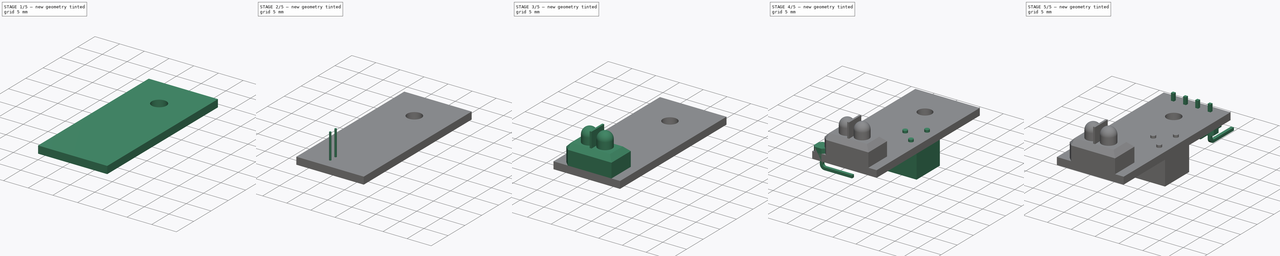
[diagram: build sequence overview — one tinted view per stage of 5, left to right]
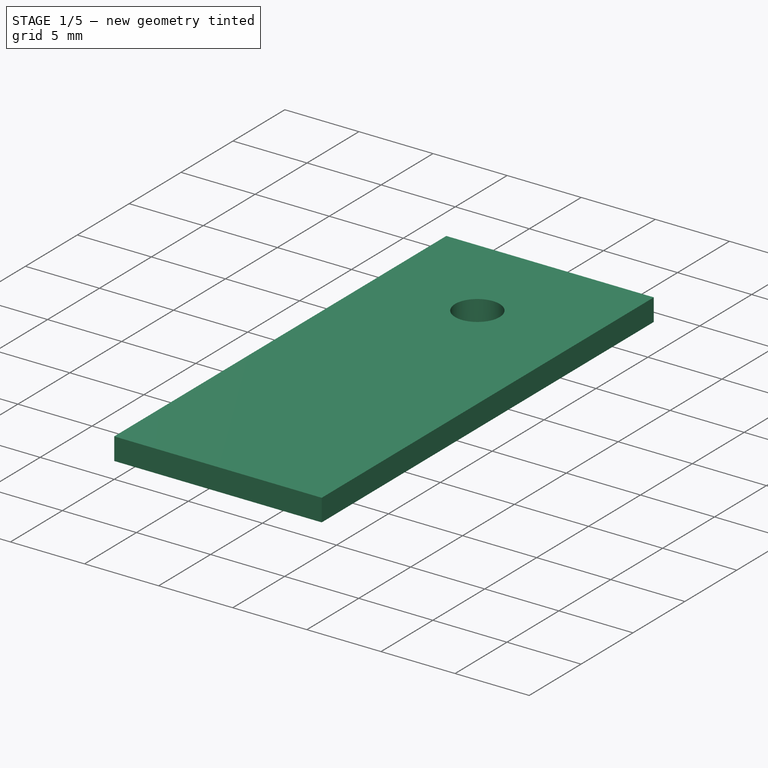
[diagram: stage 1 of 5 — iso view after this stage's code; geometry added in this stage tinted green]
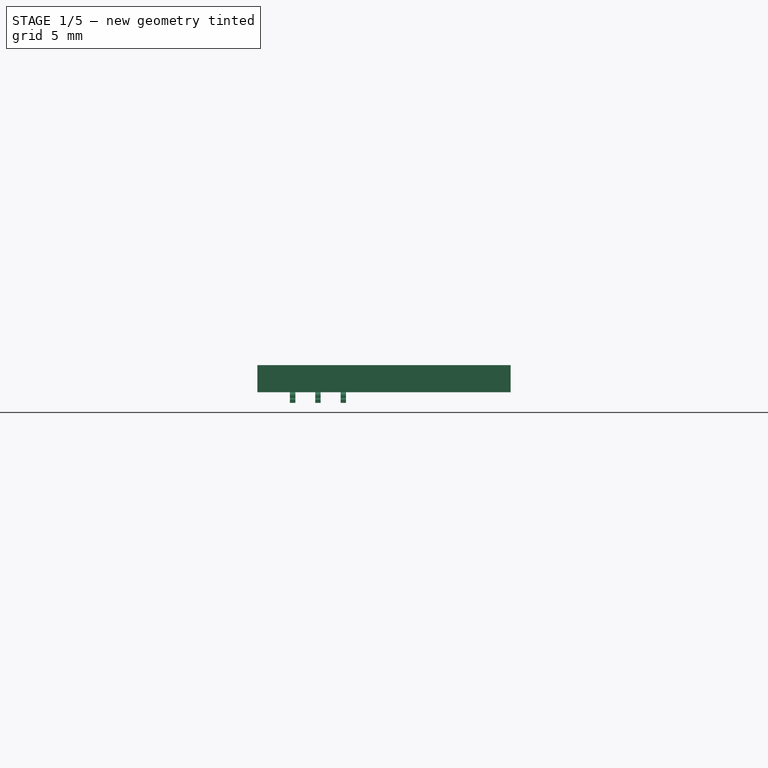
[diagram: stage 1 of 5 — front view after this stage's code; geometry added in this stage tinted green]
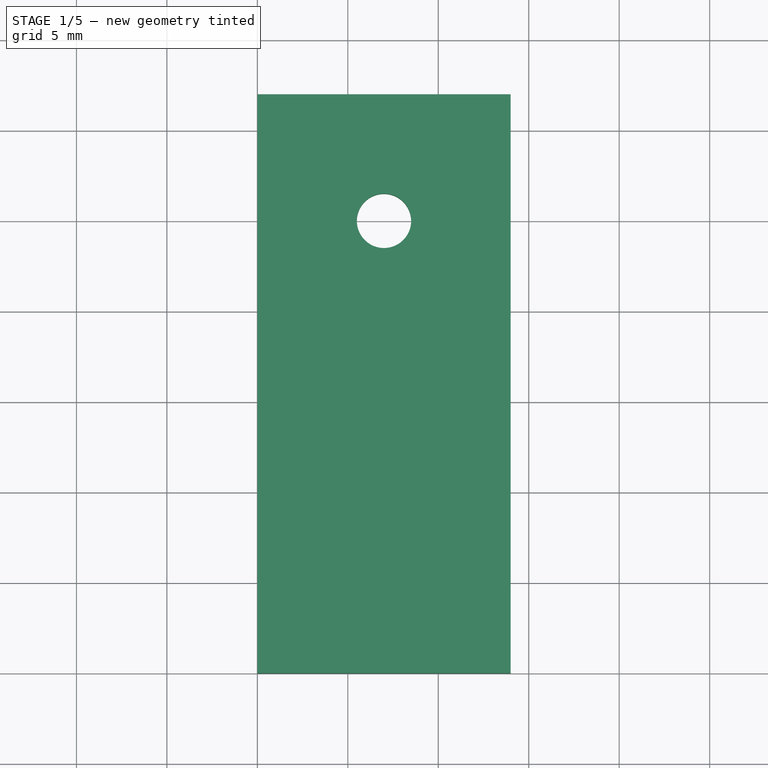
[diagram: stage 1 of 5 — top view after this stage's code; geometry added in this stage tinted green]
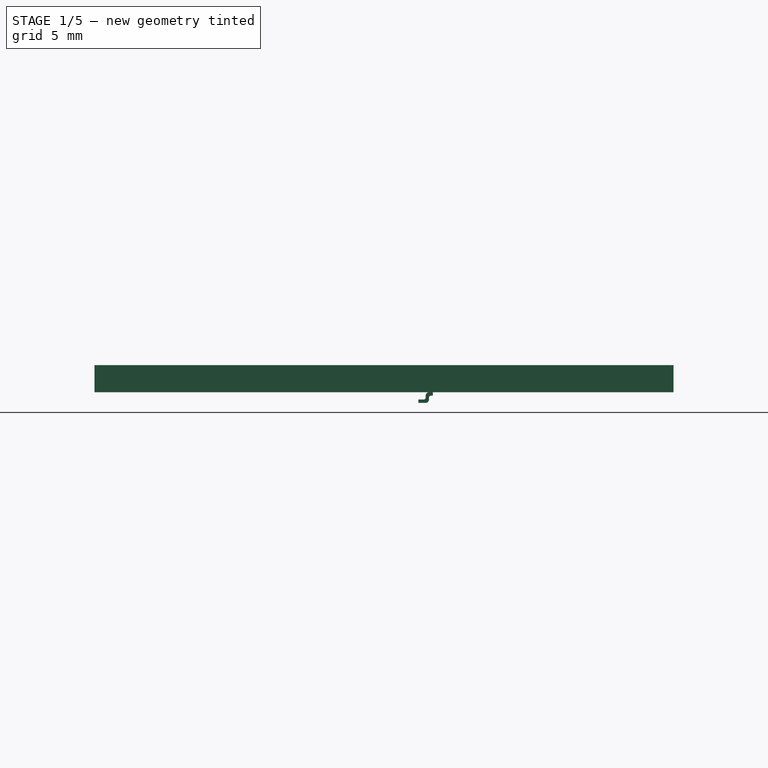
[diagram: stage 1 of 5 — right view after this stage's code; geometry added in this stage tinted green]
FCSTD DOCUMENT  (FreeCAD 0.14R3700 (Git))
Label: tcrt5000
License: CC-BY 3.0
LicenseURL: http://creativecommons.org/licenses/by/3.0/
objects: Part::Fillet×23, Part::Box×13, Part::MultiFuse×13, Part::Cylinder×10, Sketcher::SketchObject×6, PartDesign::Pad×5, PartDesign::Pocket×4, Part::Chamfer×2, Part::Sphere×2, App::DocumentObjectGroup×1
note: 87 computed .brp shape members not serialized (recipe doc carries the construction recipe); baked Part::Feature solids carry a one-line shape summary decoded from their .brp

FEATURE [Part::Box] Box  label="BASE"
  Height = 1.5
  Length = 14
  Width = 32
FEATURE [Part::Box] Box010  label="Cubo009"
  Height = 0.19
  Length = 0.3
  Placement = pos=(6,13,-0.19) rot=(0,0,1;0rad)
  Width = 0.4
FEATURE [Part::Box] Box011  label="Cubo010"
  Height = 0.19
  Length = 0.3
  Placement = pos=(6,13.4,-0.59) rot=(1,0,0;1.5708rad)
  Width = 0.4
FEATURE [Part::Box] Box012  label="Cubo011"
  Height = 0.19
  Length = 0.3
  Placement = pos=(6,13.4,-0.59) rot=(0,0,1;0rad)
  Width = 0.4
FEATURE [Part::MultiFuse] Fusion015
  Placement = pos=(0,0.3,0) rot=(0,0,1;0rad)
  Shapes = -> [Box010,Box011,Box012]
FEATURE [Part::Fillet] Fillet005
  Base = -> Fusion015
  Edges = 1 edges r=0.2: [Edge12]
FEATURE [Part::Fillet] Fillet006
  Base = -> Fillet005
  Edges = 1 edges r=0.1: [Edge25]
FEATURE [Part::Fillet] Fillet018
  Base = -> Fillet006
  Edges = 1 edges r=0.2: [Edge18]
FEATURE [Part::Fillet] Fillet017
  Base = -> Fillet018
  Edges = 1 edges r=0.1: [Edge27]
  Placement = pos=(10.9,32,0) rot=(0,0,1;3.14159rad)
FEATURE [Part::Fillet] Fillet020
  Base = -> Fillet006
  Edges = 1 edges r=0.2: [Edge18]
FEATURE [Part::Fillet] Fillet019
  Base = -> Fillet020
  Edges = 1 edges r=0.1: [Edge27]
  Placement = pos=(9.5,32,0) rot=(0,0,1;3.14159rad)
FEATURE [Part::Fillet] Fillet022
  Base = -> Fillet006
  Edges = 1 edges r=0.2: [Edge18]
FEATURE [Part::Fillet] Fillet021
  Base = -> Fillet022
  Edges = 1 edges r=0.1: [Edge27]
  Placement = pos=(8.1,32,0) rot=(0,0,1;3.14159rad)
FEATURE [Sketcher::SketchObject] Sketch005
  ExternalGeometry = -> [Box]
  Placement = pos=(0,0,0) rot=(1,0,0;3.14159rad)
  Support = -> Box [Face5]
  sketch-geometry (1):
    g0: Circle CenterX=7 CenterY=-25 CenterZ=0 NormalX=0 NormalY=0 NormalZ=1 Radius=1.5
  constraints (3):
    c: Radius(g0) = 1.5
    c: DistanceX(g0,g-3) = -7
    c: DistanceY(g0,g-3) = -7
FEATURE [PartDesign::Pocket] Pocket003  label="placa"
  Length = 5
  Sketch = -> Sketch005
  Type = 0
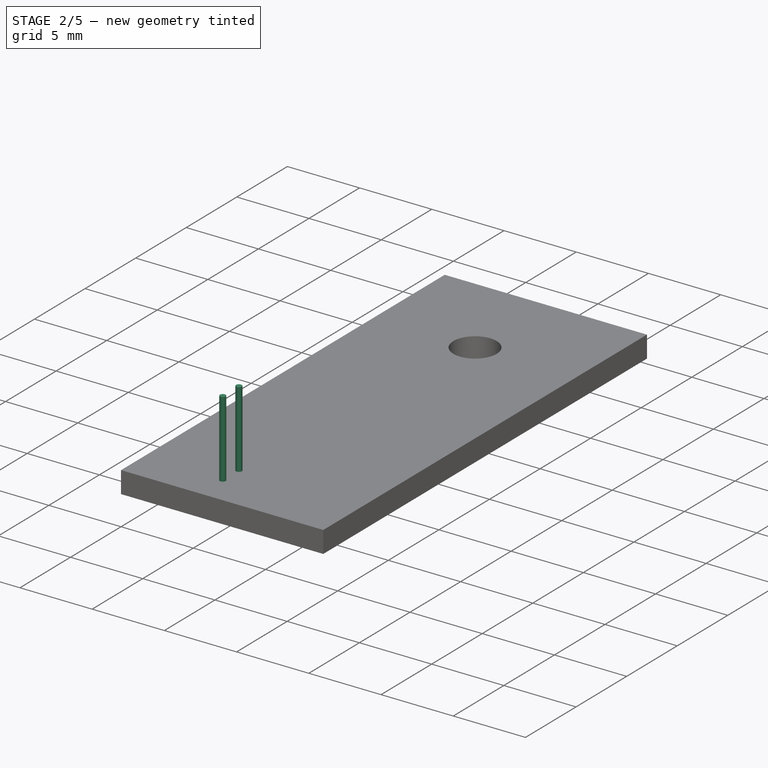
[diagram: stage 2 of 5 — iso view after this stage's code; geometry added in this stage tinted green]
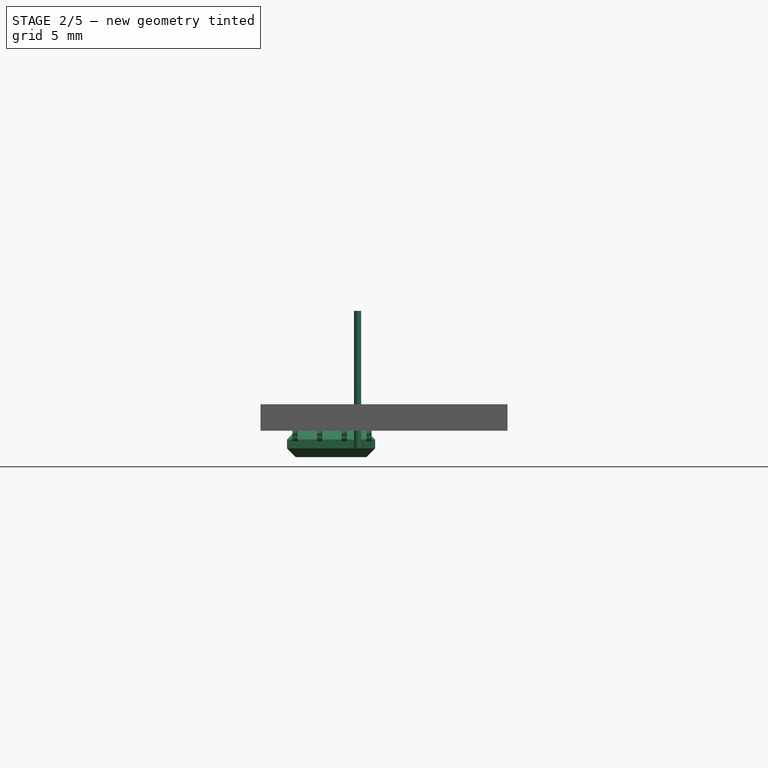
[diagram: stage 2 of 5 — front view after this stage's code; geometry added in this stage tinted green]
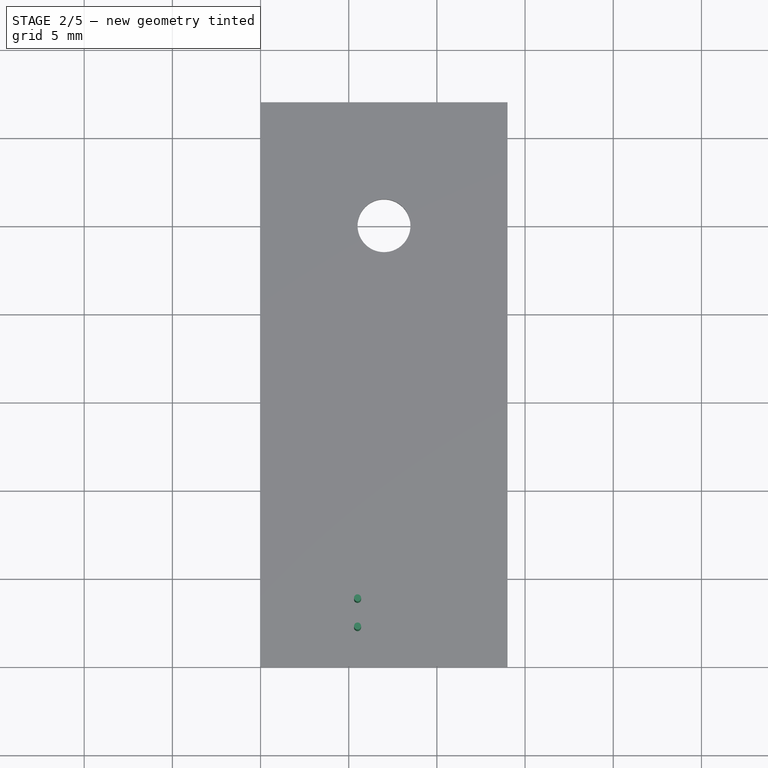
[diagram: stage 2 of 5 — top view after this stage's code; geometry added in this stage tinted green]
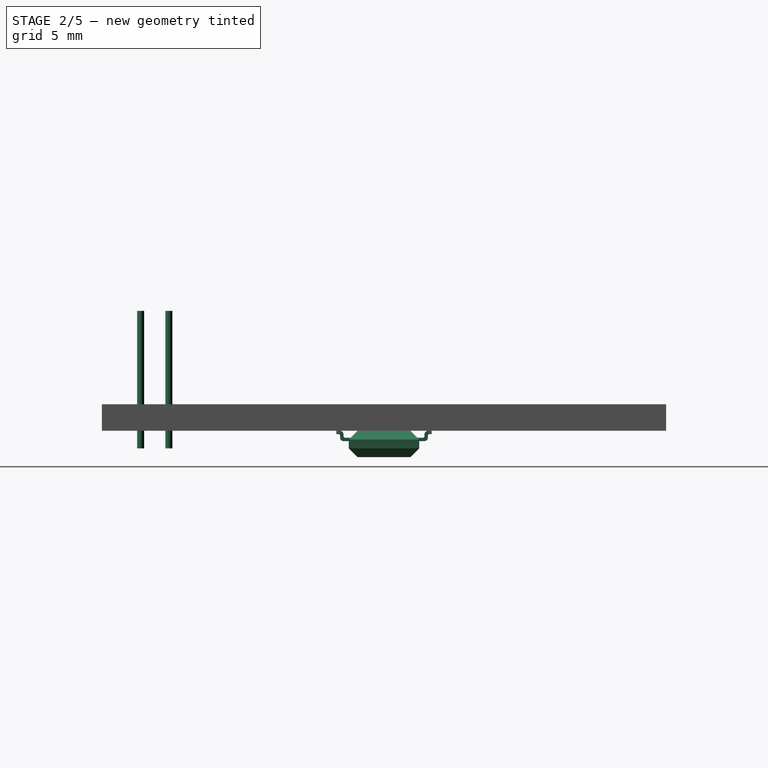
[diagram: stage 2 of 5 — right view after this stage's code; geometry added in this stage tinted green]
FEATURE [Part::Cylinder] Cylinder002  label="Cilindro002"
  Angle = 360
  Height = 7.8
  Placement = pos=(5.5,2.2,-1) rot=(0,0,1;0rad)
  Radius = 0.2
FEATURE [Part::Cylinder] Cylinder003  label="Cilindro003"
  Angle = 360
  Height = 7.8
  Placement = pos=(5.5,3.8,-1) rot=(0,0,1;0rad)
  Radius = 0.2
FEATURE [Part::Box] Box009  label="Cubo008"
  Height = 1.5
  Length = 5
  Width = 4
FEATURE [Part::Chamfer] Chamfer001
  Base = -> Box009
  Edges = 8 edges r=0.5: [Edge2,Edge4,Edge6,Edge8,Edge9,Edge10,Edge11,Edge12]
  Placement = pos=(1.5,14,-1.5) rot=(0,0,1;0rad)
FEATURE [Part::Fillet] Fillet007
  Base = -> Fillet006
  Edges = 1 edges r=0.2: [Edge18]
FEATURE [Part::Fillet] Fillet008
  Base = -> Fillet007
  Edges = 1 edges r=0.1: [Edge27]
FEATURE [Part::Fillet] Fillet010
  Base = -> Fillet006
  Edges = 1 edges r=0.2: [Edge18]
FEATURE [Part::Fillet] Fillet009
  Base = -> Fillet010
  Edges = 1 edges r=0.1: [Edge27]
  Placement = pos=(-1.4,0,0) rot=(0,0,1;0rad)
FEATURE [Part::Fillet] Fillet012
  Base = -> Fillet006
  Edges = 1 edges r=0.2: [Edge18]
FEATURE [Part::Fillet] Fillet011
  Base = -> Fillet012
  Edges = 1 edges r=0.1: [Edge27]
  Placement = pos=(-2.8,0,0) rot=(0,0,1;0rad)
FEATURE [Part::Fillet] Fillet014
  Base = -> Fillet006
  Edges = 1 edges r=0.2: [Edge18]
FEATURE [Part::Fillet] Fillet013
  Base = -> Fillet014
  Edges = 1 edges r=0.1: [Edge27]
  Placement = pos=(-4.2,0,0) rot=(0,0,1;0rad)
FEATURE [Part::Fillet] Fillet016
  Base = -> Fillet006
  Edges = 1 edges r=0.2: [Edge18]
FEATURE [Part::Fillet] Fillet015
  Base = -> Fillet016
  Edges = 1 edges r=0.1: [Edge27]
  Placement = pos=(12.3,32,0) rot=(0,0,1;3.14159rad)
FEATURE [Part::MultiFuse] Fusion016
  Shapes = -> [Chamfer001,Fillet008,Fillet011,Fillet009,Fillet013,Fillet015,Fillet021,Fillet017,Fillet019]
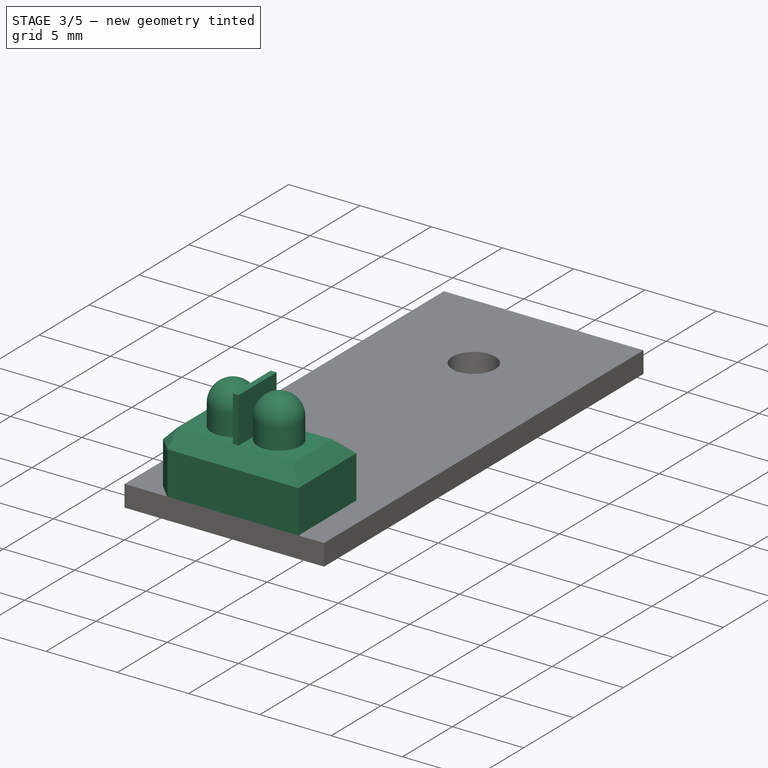
[diagram: stage 3 of 5 — iso view after this stage's code; geometry added in this stage tinted green]
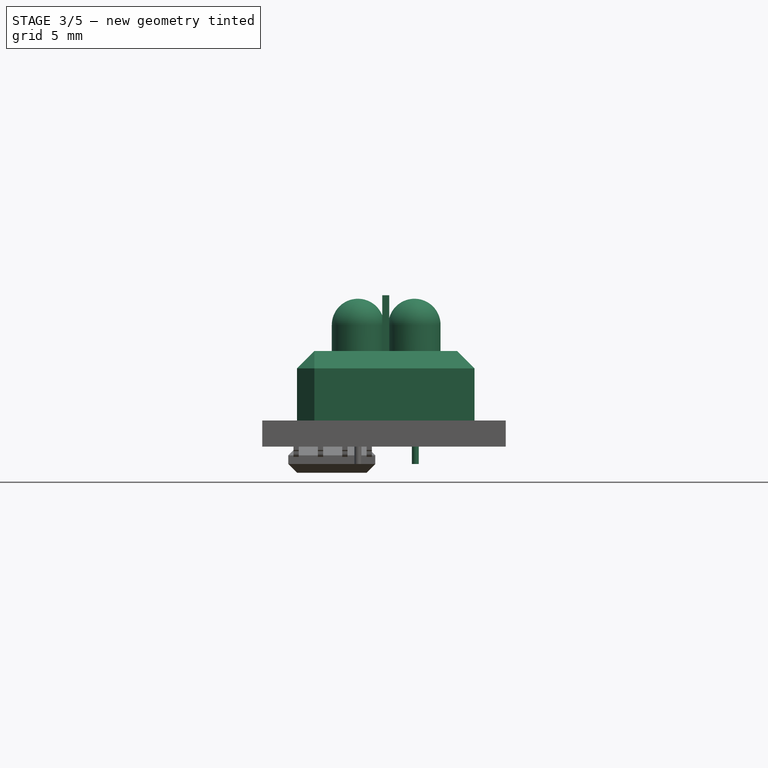
[diagram: stage 3 of 5 — front view after this stage's code; geometry added in this stage tinted green]
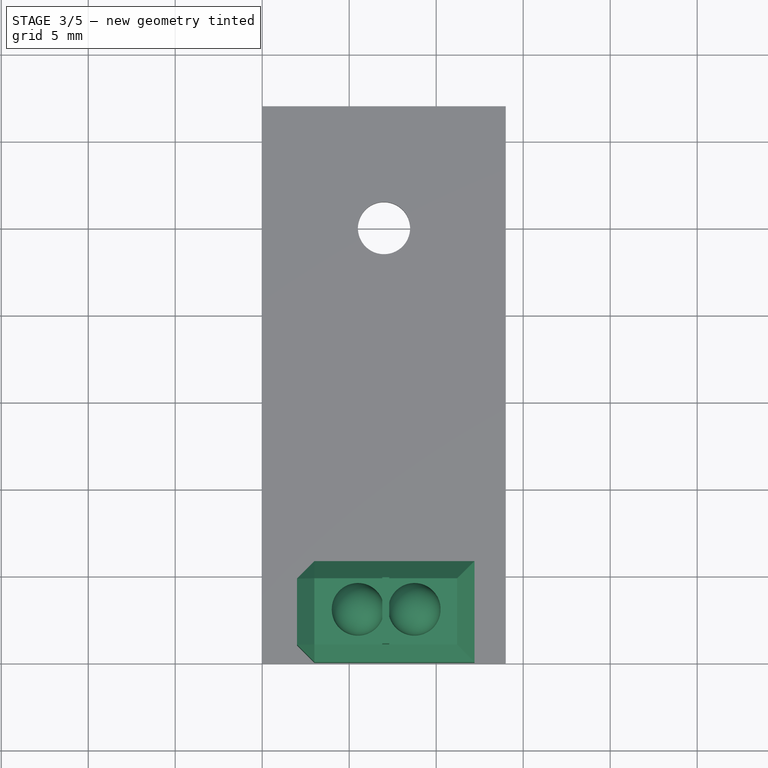
[diagram: stage 3 of 5 — top view after this stage's code; geometry added in this stage tinted green]
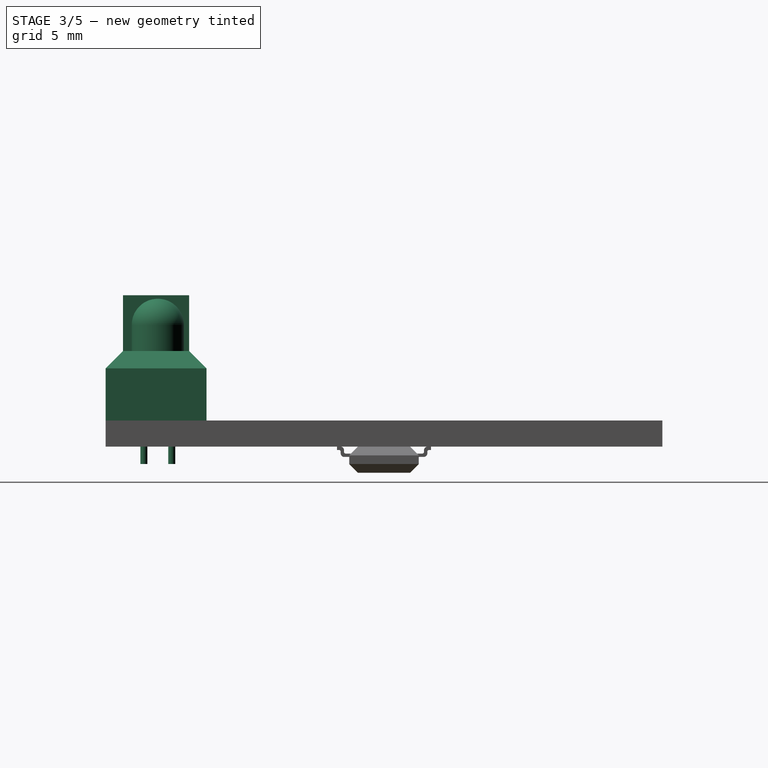
[diagram: stage 3 of 5 — right view after this stage's code; geometry added in this stage tinted green]
FEATURE [Part::Box] Box001  label="Cubo001"
  Height = 4
  Length = 10.2
  Placement = pos=(2,0,1.5) rot=(0,0,1;0rad)
  Width = 5.8
FEATURE [Part::Chamfer] Chamfer
  Base = -> Box001
  Edges = 6 edges r=1: [Edge1,Edge2,Edge3,Edge6,Edge10,Edge12]
FEATURE [Part::Sphere] Sphere  label="Esféra"
  Angle1 = -90
  Angle2 = 90
  Angle3 = 360
  Placement = pos=(5.5,3,7) rot=(0,0,1;0rad)
  Radius = 1.5
FEATURE [Sketcher::SketchObject] Sketch
  ExternalGeometry = -> [Chamfer]
  Placement = pos=(0,0,5.5) rot=(0,0,1;0rad)
  Support = -> Chamfer [Face11]
  sketch-geometry (5):
    g0: LineSegment StartX=6.9 StartY=4.8 StartZ=0 EndX=7.3 EndY=4.8 EndZ=0
    g1: LineSegment StartX=7.3 StartY=4.8 StartZ=0 EndX=7.3 EndY=1 EndZ=0
    g2: LineSegment StartX=7.3 StartY=1 StartZ=0 EndX=6.9 EndY=1 EndZ=0
    g3: LineSegment StartX=6.9 StartY=1 StartZ=0 EndX=6.9 EndY=4.8 EndZ=0
    g4: LineSegment [constr] StartX=7.1 StartY=4.8 StartZ=0 EndX=7.1 EndY=1 EndZ=0
  constraints (16):
    c: Coincident(g0,g1)
    c: Coincident(g1,g2)
    c: Coincident(g2,g3)
    c: Coincident(g3,g0)
    c: Horizontal(g0)
    c: Horizontal(g2)
    c: Vertical(g1)
    c: Vertical(g3)
    c: DistanceX(g0) = 0.4
    c: Equal(g0,g2)
    c: PointOnObject(g4,g-3)
    c: PointOnObject(g4,g-5)
    c: Symmetric(g-3,g-4,g4)
    c: Equal(g1,g4)
    c: Symmetric(g0,g0,g4)
    c: DistanceY(g-4,g0) = 0
FEATURE [PartDesign::Pad] Pad
  Length = 3.2
  Length2 = 100
  Sketch = -> Sketch
  Type = 0
FEATURE [Part::Cylinder] Cylinder  label="Cilindro"
  Angle = 360
  Height = 2
  Placement = pos=(5.5,3,5) rot=(0,0,1;0rad)
  Radius = 1.5
FEATURE [Part::MultiFuse] Fusion
  Shapes = -> [Sphere,Cylinder]
FEATURE [Part::Cylinder] Cylinder001  label="Cilindro001"
  Angle = 360
  Height = 2
  Placement = pos=(5.5,3,5) rot=(0,0,1;0rad)
  Radius = 1.5
FEATURE [Part::Sphere] Sphere001  label="Esféra001"
  Angle1 = -90
  Angle2 = 90
  Angle3 = 360
  Placement = pos=(5.5,3,7) rot=(0,0,1;0rad)
  Radius = 1.5
FEATURE [Part::MultiFuse] Fusion001
  Placement = pos=(3.25,0,0) rot=(0,0,1;0rad)
  Shapes = -> [Sphere001,Cylinder001]
FEATURE [Part::Cylinder] Cylinder004  label="Cilindro004"
  Angle = 360
  Height = 7.8
  Placement = pos=(8.8,2.2,-1) rot=(0,0,1;0rad)
  Radius = 0.2
FEATURE [Part::Cylinder] Cylinder005  label="Cilindro005"
  Angle = 360
  Height = 7.8
  Placement = pos=(8.8,3.8,-1) rot=(0,0,1;0rad)
  Radius = 0.2
FEATURE [App::DocumentObjectGroup] Grupo  label="Potenciometro"
  Group = -> [Pocket002,Fusion011,Pocket001,Cylinder006,Box008]
FEATURE [Part::MultiFuse] Fusion012  label="phtotoresisto"
  Shapes = -> [Fusion001,Cylinder004,Cylinder005]
FEATURE [Part::MultiFuse] Fusion013  label="LED"
  Shapes = -> [Fusion,Cylinder002,Cylinder003]
FEATURE [Part::MultiFuse] Fusion014
  Shapes = -> [Pad,Fusion012,Fusion013]
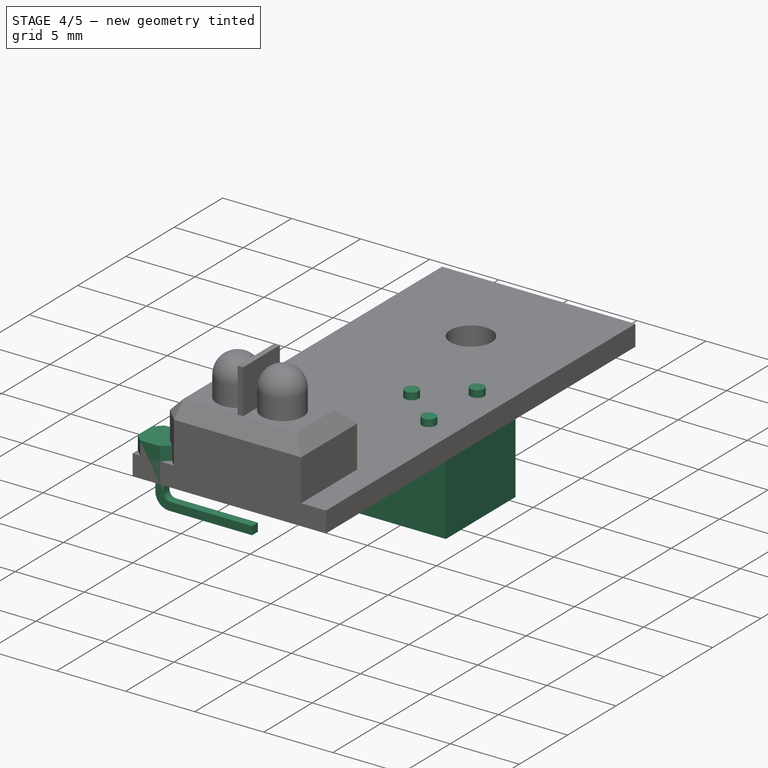
[diagram: stage 4 of 5 — iso view after this stage's code; geometry added in this stage tinted green]
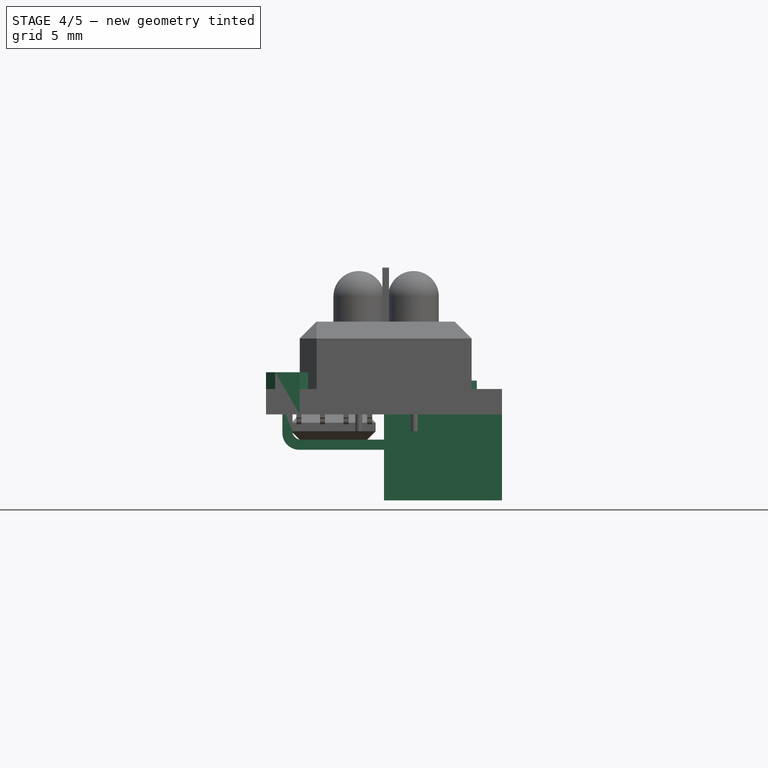
[diagram: stage 4 of 5 — front view after this stage's code; geometry added in this stage tinted green]
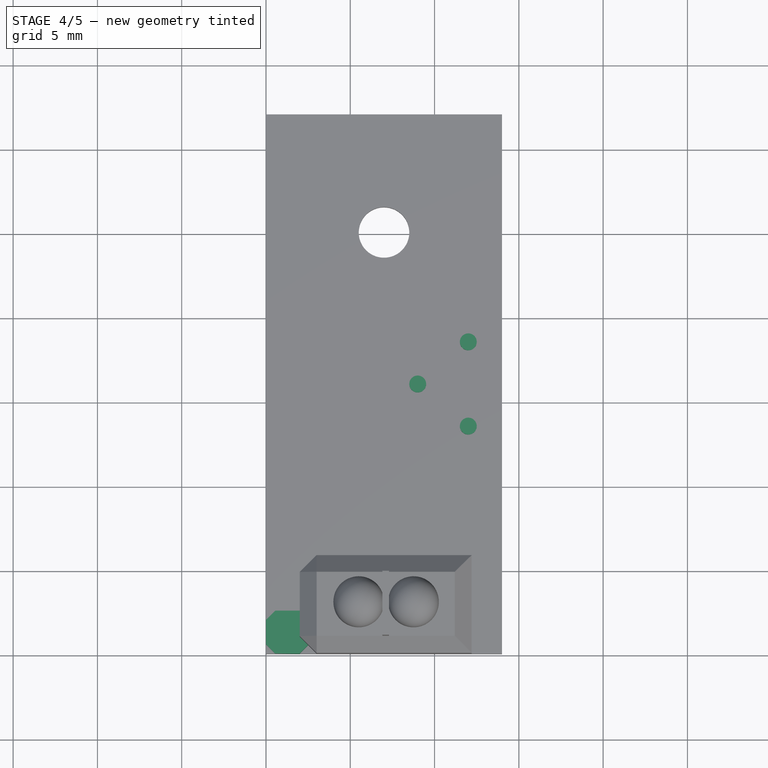
[diagram: stage 4 of 5 — top view after this stage's code; geometry added in this stage tinted green]
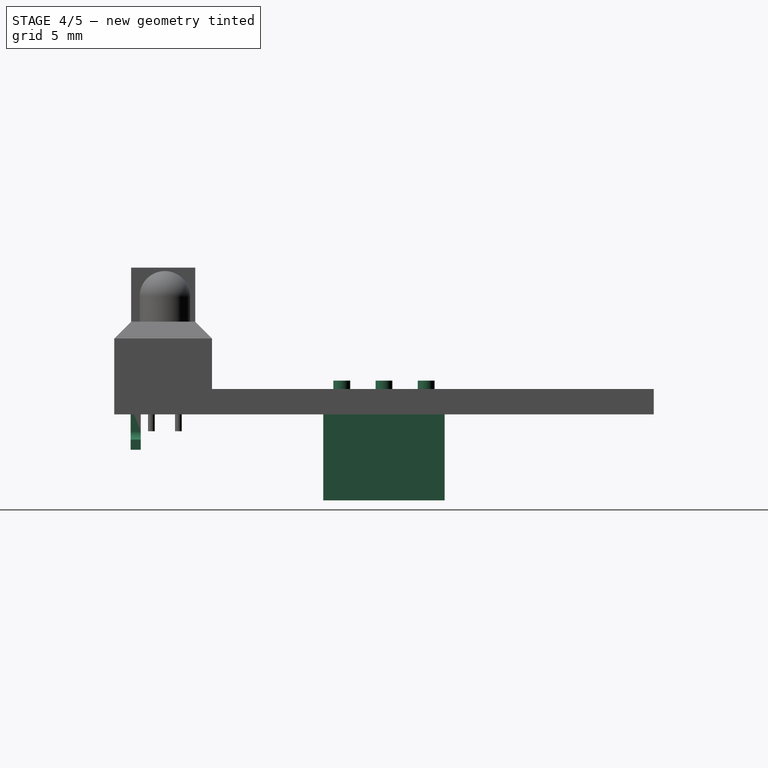
[diagram: stage 4 of 5 — right view after this stage's code; geometry added in this stage tinted green]
FEATURE [Part::Box] Box003  label="Cubo002"
  Height = 2
  Length = 0.6
  Placement = pos=(0.97,0.97,-1.5) rot=(0,0,1;0rad)
  Width = 0.6
FEATURE [Part::Box] Box004  label="Cubo003"
  Height = 7
  Length = 0.6
  Placement = pos=(0.97,0.97,-1.5) rot=(0,1,0;1.5708rad)
  Width = 0.6
FEATURE [Part::MultiFuse] Fusion006
  Shapes = -> [Box003,Box004]
FEATURE [Part::Fillet] Fillet
  Base = -> Fusion006
  Edges = 1 edges r=1: [Edge16]
FEATURE [Part::Fillet] Fillet004
  Base = -> Fillet
  Edges = 1 edges r=0.5: [Edge21]
FEATURE [PartDesign::Pad] Pad004
  Length = 2.5
  Length2 = 100
  Sketch = -> Sketch001
  Type = 0
FEATURE [Part::Box] Box008  label="Cubo007"
  Height = 5.1
  Length = 7
  Placement = pos=(7,12.4,-5.1) rot=(0,0,1;0rad)
  Width = 7.2
FEATURE [Sketcher::SketchObject] Sketch002
  Placement = pos=(7,12.4,-5.1) rot=(1,0,0;3.14159rad)
  Support = -> Box008 [Face5]
  sketch-geometry (1):
    g0: Circle CenterX=3.5 CenterY=-3.5 CenterZ=0 NormalX=0 NormalY=0 NormalZ=1 Radius=1.5
  constraints (3):
    c: Radius(g0) = 1.5
    c: DistanceY(g-1,g0) = -3.5
    c: DistanceX(g-1,g0) = 3.5
FEATURE [PartDesign::Pocket] Pocket
  Length = 2
  Placement = pos=(7,12.4,-5.1) rot=(0,0,1;0rad)
  Sketch = -> Sketch002
  Type = 0
FEATURE [Part::Cylinder] Cylinder006  label="Cilindro006"
  Angle = 360
  Height = 2
  Placement = pos=(10.5,15.9,-5.1) rot=(0,0,1;0rad)
  Radius = 1.5
FEATURE [Sketcher::SketchObject] Sketch003
  ExternalGeometry = -> [Cylinder006]
  Placement = pos=(10.5,15.9,-5.1) rot=(1,0,0;3.14159rad)
  Support = -> Cylinder006 [Face3]
  sketch-geometry (4):
    g0: LineSegment StartX=-1.65732 StartY=0.25 StartZ=0 EndX=1.84268 EndY=0.25 EndZ=0
    g1: LineSegment StartX=1.84268 StartY=0.25 StartZ=0 EndX=1.84268 EndY=-0.25 EndZ=0
    g2: LineSegment StartX=1.84268 StartY=-0.25 StartZ=0 EndX=-1.65732 EndY=-0.25 EndZ=0
    g3: LineSegment StartX=-1.65732 StartY=-0.25 StartZ=0 EndX=-1.65732 EndY=0.25 EndZ=0
  constraints (14):
    c: Coincident(g0,g1)
    c: Coincident(g1,g2)
    c: Coincident(g2,g3)
    c: Coincident(g3,g0)
    c: Horizontal(g0)
    c: Horizontal(g2)
    c: Vertical(g1)
    c: Vertical(g3)
    c: Equal(g1,g3)
    c: DistanceY(g1) = -0.5
    c: Symmetric(g0,g2,g-1)
    c: Equal(g0,g2)
    c: DistanceX(g2) = -3.5
    c: DistanceX(g-1,g0) = -1.65732
FEATURE [PartDesign::Pocket] Pocket001
  Length = 0.5
  Placement = pos=(10.5,15.9,-5.1) rot=(0,0,1;0rad)
  Sketch = -> Sketch003
  Type = 0
FEATURE [Sketcher::SketchObject] Sketch004
  Placement = pos=(10.5,15.9,-5.1) rot=(1,0,0;3.14159rad)
  Support = -> Pocket001 [Face3]
  sketch-geometry (4):
    g0: LineSegment StartX=-0.25 StartY=1.63973 StartZ=0 EndX=0.25 EndY=1.63973 EndZ=0
    g1: LineSegment StartX=0.25 StartY=1.63973 StartZ=0 EndX=0.25 EndY=-1.71594 EndZ=0
    g2: LineSegment StartX=0.25 StartY=-1.71594 StartZ=0 EndX=-0.25 EndY=-1.71594 EndZ=0
    g3: LineSegment StartX=-0.25 StartY=-1.71594 StartZ=0 EndX=-0.25 EndY=1.63973 EndZ=0
  constraints (13):
    c: Coincident(g0,g1)
    c: Coincident(g1,g2)
    c: Coincident(g2,g3)
    c: Coincident(g3,g0)
    c: Horizontal(g0)
    c: Horizontal(g2)
    c: Vertical(g1)
    c: Vertical(g3)
    c: Equal(g0,g2)
    c: DistanceX(g0) = 0.5
    c: Symmetric(g0,g0,g-2)
    c: DistanceY(g3) = 3.35567
    c: DistanceY(g-1,g0) = 1.63973
FEATURE [PartDesign::Pocket] Pocket002
  Length = 0.5
  Placement = pos=(10.5,15.9,-5.1) rot=(0,0,1;0rad)
  Sketch = -> Sketch004
  Type = 0
FEATURE [Part::Cylinder] Cylinder007  label="Cilindro007"
  Angle = 360
  Height = 2
  Placement = pos=(12,13.5,0) rot=(0,0,1;0rad)
  Radius = 0.5
FEATURE [Part::Cylinder] Cylinder008  label="Cilindro008"
  Angle = 360
  Height = 2
  Placement = pos=(12,18.5,0) rot=(0,0,1;0rad)
  Radius = 0.5
FEATURE [Part::Cylinder] Cylinder009  label="Cilindro009"
  Angle = 360
  Height = 2
  Placement = pos=(9,16,0) rot=(0,0,1;0rad)
  Radius = 0.5
FEATURE [Part::MultiFuse] Fusion011
  Shapes = -> [Pocket,Cylinder008,Cylinder009,Cylinder007]
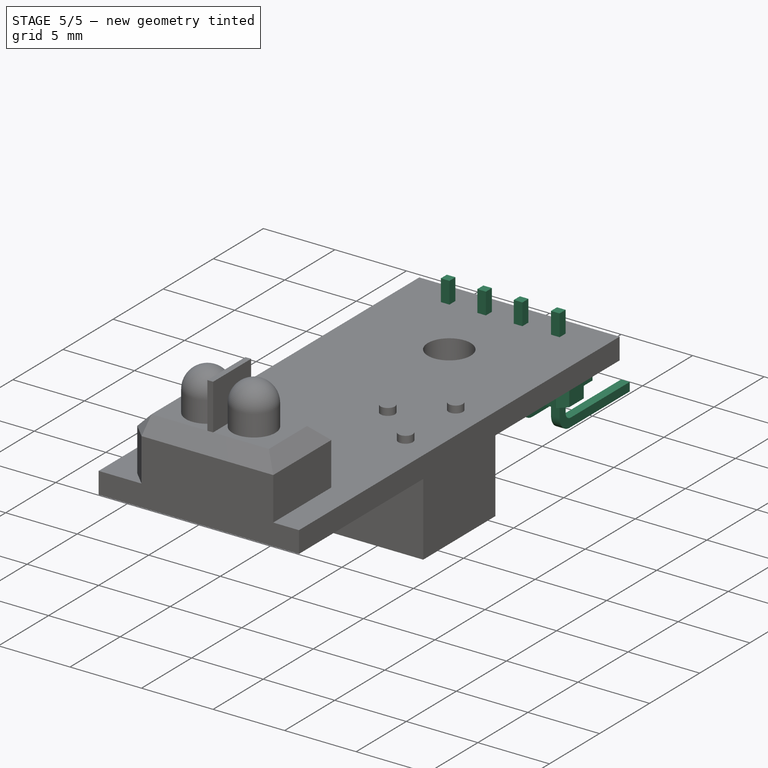
[diagram: stage 5 of 5 — iso view after this stage's code; geometry added in this stage tinted green]
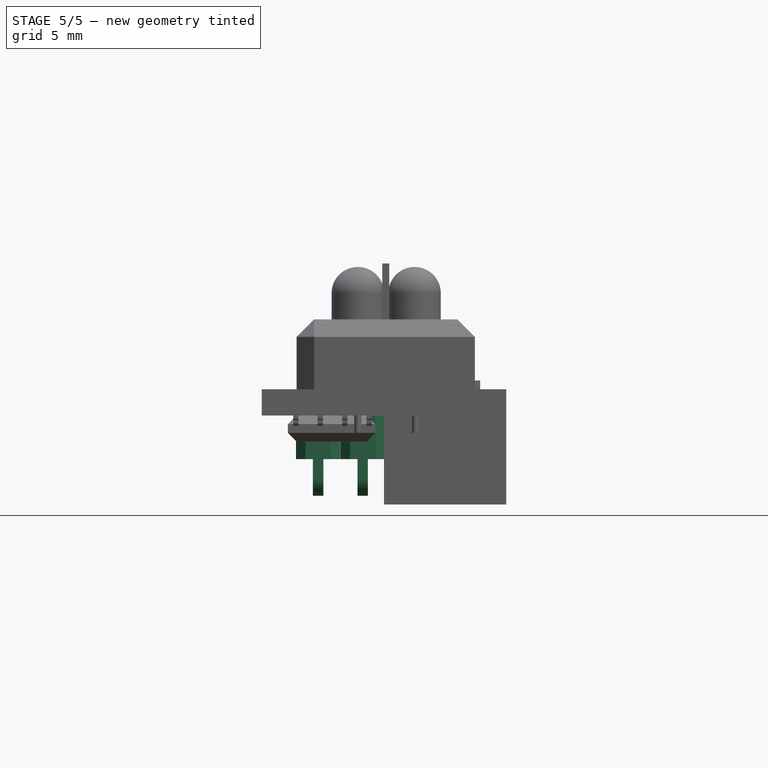
[diagram: stage 5 of 5 — front view after this stage's code; geometry added in this stage tinted green]
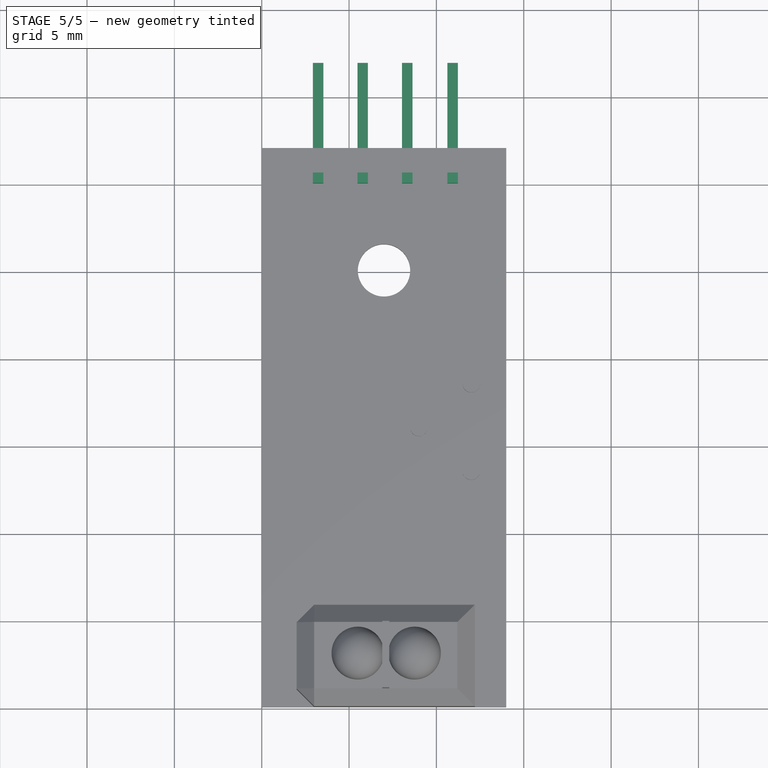
[diagram: stage 5 of 5 — top view after this stage's code; geometry added in this stage tinted green]
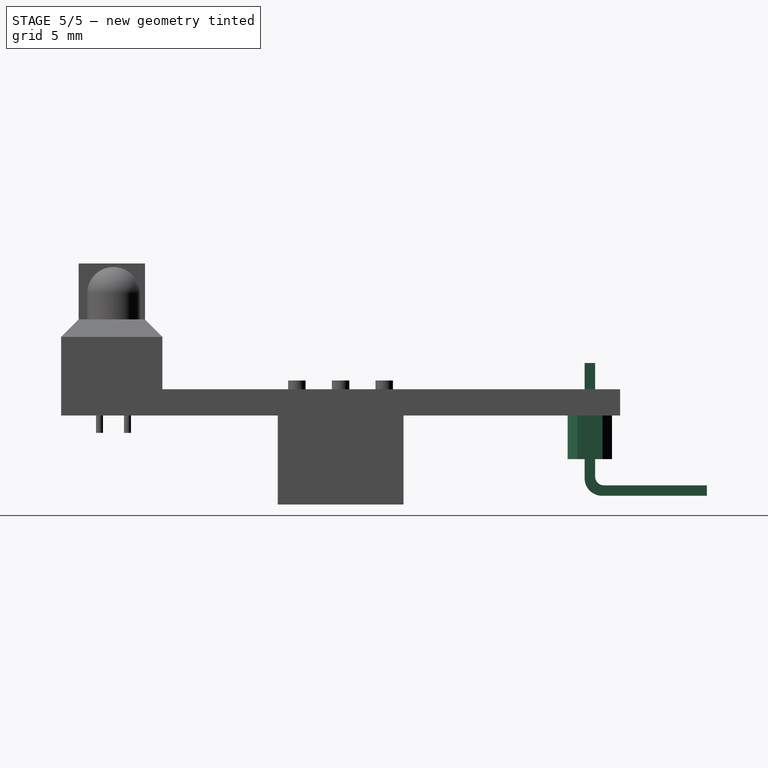
[diagram: stage 5 of 5 — right view after this stage's code; geometry added in this stage tinted green]
FEATURE [Sketcher::SketchObject] Sketch001
  sketch-geometry (9):
    g0: LineSegment StartX=0 StartY=0.544315 StartZ=0 EndX=0.544315 EndY=0 EndZ=0
    g1: LineSegment StartX=0.544315 StartY=0 StartZ=0 EndX=1.99568 EndY=0 EndZ=0
    g2: LineSegment StartX=1.99568 StartY=0 StartZ=0 EndX=2.54 EndY=0.544315 EndZ=0
    g3: LineSegment StartX=2.54 StartY=0.544315 StartZ=0 EndX=2.54 EndY=1.99568 EndZ=0
    g4: LineSegment StartX=2.54 StartY=1.99568 StartZ=0 EndX=1.99568 EndY=2.54 EndZ=0
    g5: LineSegment StartX=1.99568 StartY=2.54 StartZ=0 EndX=0.544315 EndY=2.54 EndZ=0
    g6: LineSegment StartX=0.544315 StartY=2.54 StartZ=0 EndX=0 EndY=1.99568 EndZ=0
    g7: LineSegment StartX=0 StartY=1.99568 StartZ=0 EndX=0 EndY=0.544315 EndZ=0
    g8: LineSegment [constr] StartX=1.27 StartY=2.54 StartZ=0 EndX=1.27 EndY=0 EndZ=0
  constraints (28):
    c: Coincident(g0,g1)
    c: Coincident(g1,g2)
    c: Coincident(g2,g3)
    c: Coincident(g3,g4)
    c: Coincident(g4,g5)
    c: Coincident(g5,g6)
    c: Coincident(g6,g7)
    c: Coincident(g7,g0)
    c: Equal(g6,g4)
    c: Equal(g4,g2)
    c: Equal(g2,g0)
    c: Angle(g6,g5) = 2.35619
    c: Horizontal(g5)
    c: Equal(g1,g5)
    c: Equal(g5,g3)
    c: Equal(g3,g7)
    c: Horizontal(g1)
    c: Vertical(g3)
    c: Vertical(g7)
    c: Angle(g5,g4) = 2.35619
    c: PointOnObject(g8,g5)
    c: Vertical(g8)
    c: Symmetric(g4,g5,g8)
    c: DistanceY(g8) = -2.54
    c: PointOnObject(g8,g1)
    c: PointOnObject(g0,g-1)
    c: PointOnObject(g0,g-2)
    c: DistanceY(g3) = 1.45137
FEATURE [PartDesign::Pad] Pad001
  Length = 2.5
  Length2 = 100
  Sketch = -> Sketch001
  Type = 0
FEATURE [Part::Box] Box002  label="Cubo"
  Height = 3
  Length = 0.6
  Placement = pos=(0.97,0.97,2.5) rot=(0,0,1;0rad)
  Width = 0.6
FEATURE [Part::Fillet] Fillet001
  Base = -> Fillet
  Edges = 1 edges r=0.5: [Edge21]
FEATURE [Part::MultiFuse] Fusion007  label="conector"
  Placement = pos=(4.5,29,-2.5) rot=(0,0,1;1.5708rad)
  Shapes = -> [Pad001,Box002,Fillet001]
FEATURE [Part::Fillet] Fillet002
  Base = -> Fillet
  Edges = 1 edges r=0.5: [Edge21]
FEATURE [Part::Box] Box005  label="Cubo004"
  Height = 3
  Length = 0.6
  Placement = pos=(0.97,0.97,2.5) rot=(0,0,1;0rad)
  Width = 0.6
FEATURE [PartDesign::Pad] Pad002
  Length = 2.5
  Length2 = 100
  Sketch = -> Sketch001
  Type = 0
FEATURE [Part::MultiFuse] Fusion008  label="conector001"
  Placement = pos=(7.05,29,-2.5) rot=(0,0,1;1.5708rad)
  Shapes = -> [Pad002,Box005,Fillet002]
FEATURE [Part::Fillet] Fillet003
  Base = -> Fillet
  Edges = 1 edges r=0.5: [Edge21]
FEATURE [Part::Box] Box006  label="Cubo005"
  Height = 3
  Length = 0.6
  Placement = pos=(0.97,0.97,2.5) rot=(0,0,1;0rad)
  Width = 0.6
FEATURE [PartDesign::Pad] Pad003
  Length = 2.5
  Length2 = 100
  Sketch = -> Sketch001
  Type = 0
FEATURE [Part::MultiFuse] Fusion009  label="conector002"
  Placement = pos=(9.6,29,-2.5) rot=(0,0,1;1.5708rad)
  Shapes = -> [Pad003,Box006,Fillet003]
FEATURE [Part::Box] Box007  label="Cubo006"
  Height = 3
  Length = 0.6
  Placement = pos=(0.97,0.97,2.5) rot=(0,0,1;0rad)
  Width = 0.6
FEATURE [Part::MultiFuse] Fusion010  label="conector003"
  Placement = pos=(12.2,29,-2.5) rot=(0,0,1;1.5708rad)
  Shapes = -> [Pad004,Box007,Fillet004]
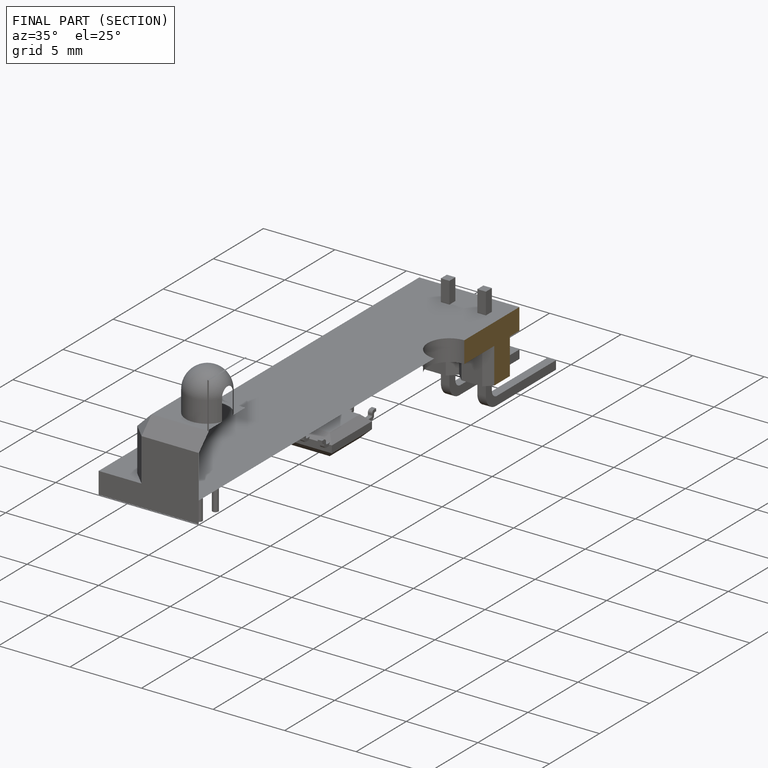
[diagram: finished part — half-section view (interior)]
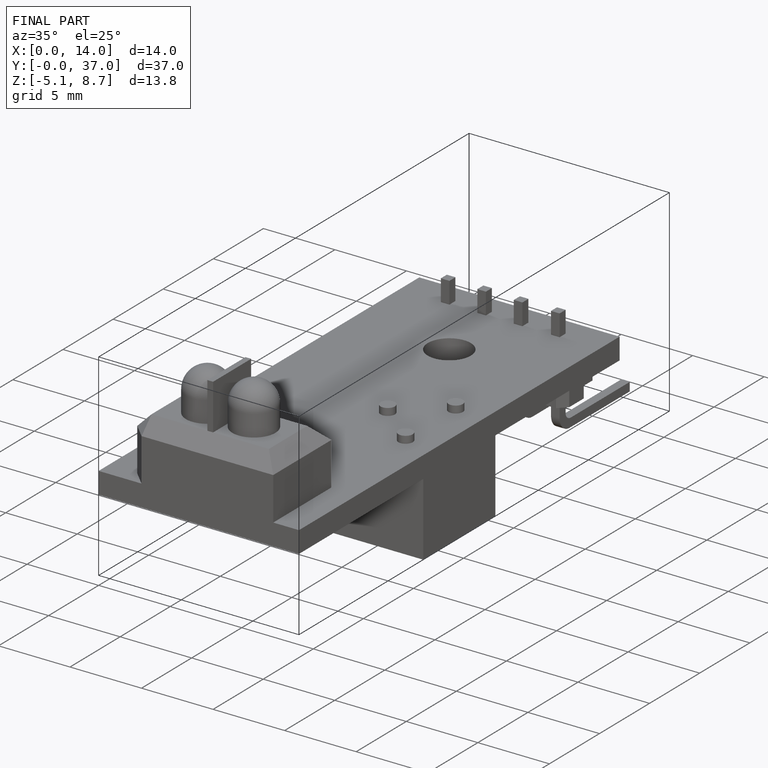
[diagram: finished part — iso view with bounding-box wireframe]
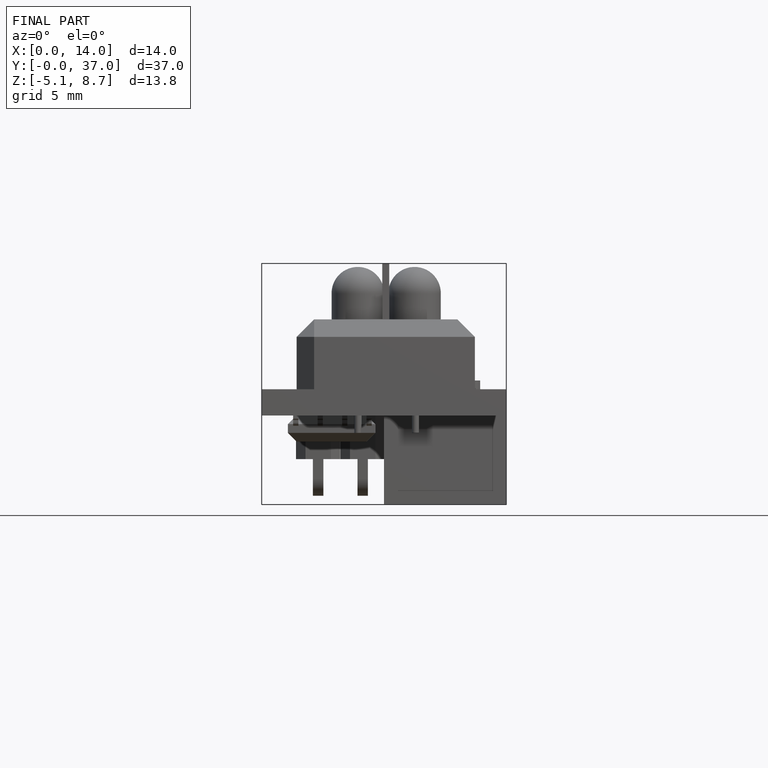
[diagram: finished part — front view with bounding-box wireframe]
